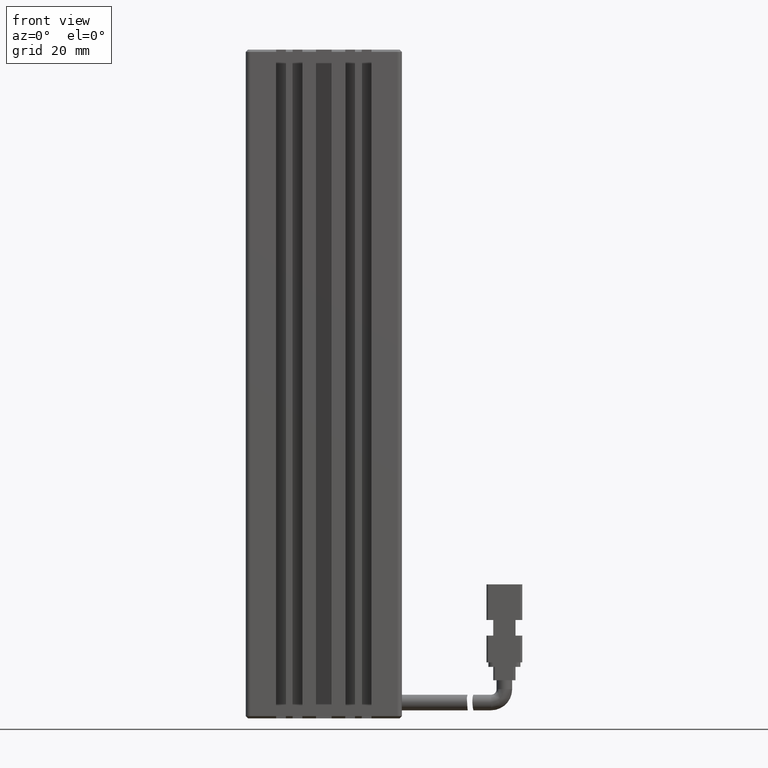
[diagram: clean part render]
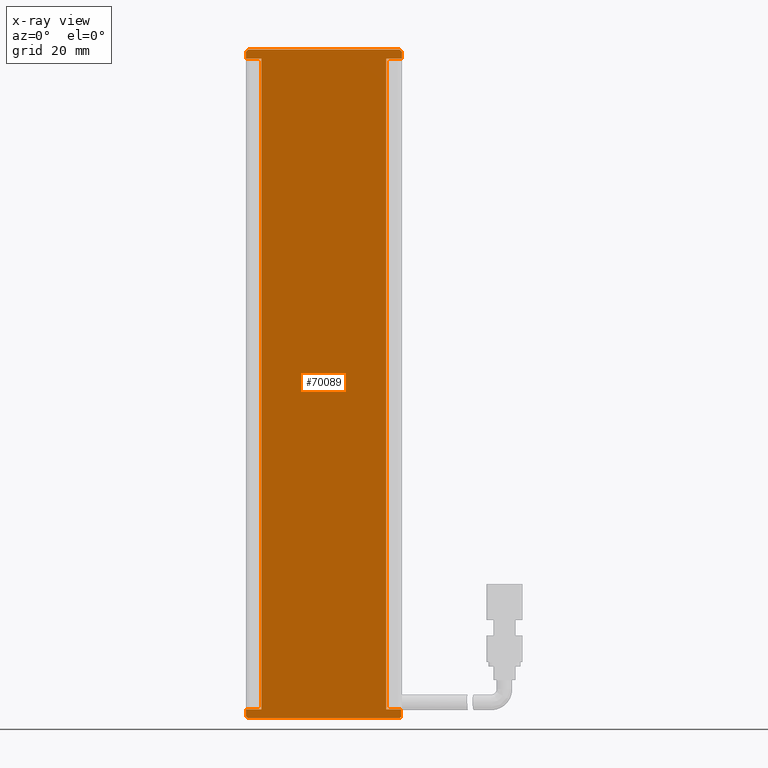
[diagram: x-ray — body ghosted, one internal face saturated and labeled with its STEP entity id]
A machine part, front view, then the same camera in x-ray: the body is ghosted and one INTERNAL B-rep face — a face not visible from any outside direction — is saturated and labeled: STEP entity #70089.
In plain terms, the highlighted planar face has unit normal (0, -1, 0).
Its self-contained STEP definition (entity closure, byte-faithful):
#636 = VECTOR ( 'NONE', #70390, 1000.000000000000000 ) ;
#668 = VERTEX_POINT ( 'NONE', #14587 ) ;
#1363 = LINE ( 'NONE', #42373, #33017 ) ;
#1548 = AXIS2_PLACEMENT_3D ( 'NONE', #62376, #45789, #12867 ) ;
#2262 = CARTESIAN_POINT ( 'NONE',  ( 23.42537974683542100, 19.49073232304836600, -188.0000000000000000 ) ) ;
#3545 = LINE ( 'NONE', #45978, #57423 ) ;
#3911 = CARTESIAN_POINT ( 'NONE',  ( 40.92537974683542500, 19.49073232304837000, -42.00000000000000700 ) ) ;
#3934 = CARTESIAN_POINT ( 'NONE',  ( 57.92537974683544600, 19.49073232304837700, -190.0000000000000000 ) ) ;
#4233 = DIRECTION ( 'NONE',  ( 0.7071067811865376900, -0.0000000000000000000, 0.7071067811865574500 ) ) ;
#5589 = LINE ( 'NONE', #30839, #26155 ) ;
#5670 = EDGE_CURVE ( 'NONE', #69003, #19405, #1363, .T. ) ;
#6541 = CARTESIAN_POINT ( 'NONE',  ( 23.42537974683541100, 19.49073232304836600, -189.5000000000000000 ) ) ;
#6785 = EDGE_CURVE ( 'NONE', #9625, #35556, #48807, .T. ) ;
#7121 = CARTESIAN_POINT ( 'NONE',  ( 23.92537974683541100, 19.49073232304836600, -190.0000000000000000 ) ) ;
#7551 = LINE ( 'NONE', #59390, #19555 ) ;
#9625 = VERTEX_POINT ( 'NONE', #61775 ) ;
#10149 = CARTESIAN_POINT ( 'NONE',  ( 26.92537974683542100, 19.49073232304836600, -188.0000000000000000 ) ) ;
#10217 = LINE ( 'NONE', #49197, #42699 ) ;
#10620 = CARTESIAN_POINT ( 'NONE',  ( 54.92537974683542500, 19.49073232304837000, -188.0000000000000000 ) ) ;
#11224 = CARTESIAN_POINT ( 'NONE',  ( 23.92537974683539700, 19.49073232304836600, -40.00000000000000700 ) ) ;
#11360 = LINE ( 'NONE', #55773, #29328 ) ;
#12867 = DIRECTION ( 'NONE',  ( 1.000000000000000000, 1.239088197126290600E-016, 0.0000000000000000000 ) ) ;
#13559 = EDGE_CURVE ( 'NONE', #20978, #70380, #18668, .T. ) ;
#13672 = CARTESIAN_POINT ( 'NONE',  ( 40.92537974683542500, 19.49073232304837000, -188.0000000000000000 ) ) ;
#14587 = CARTESIAN_POINT ( 'NONE',  ( 54.92537974683542500, 19.49073232304837000, -42.00000000000000700 ) ) ;
#15161 = CARTESIAN_POINT ( 'NONE',  ( 58.42537974683542500, 19.49073232304837700, -189.5000000000000300 ) ) ;
#15497 = CARTESIAN_POINT ( 'NONE',  ( 58.42537974683542500, 19.49073232304837000, -40.00000000000000700 ) ) ;
#17442 = EDGE_CURVE ( 'NONE', #54816, #61255, #7551, .T. ) ;
#18220 = EDGE_CURVE ( 'NONE', #35556, #668, #63845, .T. ) ;
#18379 = EDGE_CURVE ( 'NONE', #69003, #41795, #5589, .T. ) ;
#18668 = LINE ( 'NONE', #15161, #36677 ) ;
#19356 = ORIENTED_EDGE ( 'NONE', *, *, #38972, .F. ) ;
#19405 = VERTEX_POINT ( 'NONE', #27854 ) ;
#19555 = VECTOR ( 'NONE', #31461, 1000.000000000000000 ) ;
#20096 = CARTESIAN_POINT ( 'NONE',  ( 26.92537974683542100, 19.49073232304836600, -42.00000000000000700 ) ) ;
#20978 = VERTEX_POINT ( 'NONE', #62212 ) ;
#22678 = CARTESIAN_POINT ( 'NONE',  ( 54.92537974683542500, 19.49073232304837000, -40.00000000000000700 ) ) ;
#23193 = VECTOR ( 'NONE', #51830, 1000.000000000000000 ) ;
#23412 = LINE ( 'NONE', #3911, #56760 ) ;
#23973 = EDGE_CURVE ( 'NONE', #25539, #41795, #24524, .T. ) ;
#24372 = VECTOR ( 'NONE', #38802, 1000.000000000000000 ) ;
#24524 = LINE ( 'NONE', #34796, #56191 ) ;
#24680 = ORIENTED_EDGE ( 'NONE', *, *, #5670, .F. ) ;
#25509 = EDGE_CURVE ( 'NONE', #28510, #25539, #11360, .T. ) ;
#25539 = VERTEX_POINT ( 'NONE', #51963 ) ;
#26155 = VECTOR ( 'NONE', #4233, 999.9999999999998900 ) ;
#27854 = CARTESIAN_POINT ( 'NONE',  ( 23.42537974683542100, 19.49073232304836600, -42.00000000000000700 ) ) ;
#28510 = VERTEX_POINT ( 'NONE', #40415 ) ;
#28606 = ORIENTED_EDGE ( 'NONE', *, *, #23973, .F. ) ;
#28677 = DIRECTION ( 'NONE',  ( 5.595882180570460600E-016, 5.595882180570315600E-016, -1.000000000000000000 ) ) ;
#28759 = ORIENTED_EDGE ( 'NONE', *, *, #65673, .F. ) ;
#28897 = VECTOR ( 'NONE', #55609, 1000.000000000000000 ) ;
#29328 = VECTOR ( 'NONE', #56046, 1000.000000000000000 ) ;
#29597 = ORIENTED_EDGE ( 'NONE', *, *, #6785, .F. ) ;
#30839 = CARTESIAN_POINT ( 'NONE',  ( 23.42537974683542100, 19.49073232304836600, -40.49999999999999300 ) ) ;
#31461 = DIRECTION ( 'NONE',  ( 0.7071067811865378000, -0.0000000000000000000, -0.7071067811865573400 ) ) ;
#31480 = DIRECTION ( 'NONE',  ( 1.000000000000000000, 1.239088197126290600E-016, 0.0000000000000000000 ) ) ;
#32180 = ORIENTED_EDGE ( 'NONE', *, *, #18379, .T. ) ;
#33017 = VECTOR ( 'NONE', #64872, 1000.000000000000000 ) ;
#33084 = DIRECTION ( 'NONE',  ( 1.000000000000000000, 1.239088197126290600E-016, 0.0000000000000000000 ) ) ;
#33998 = ORIENTED_EDGE ( 'NONE', *, *, #70575, .F. ) ;
#34545 = EDGE_CURVE ( 'NONE', #9625, #20978, #10217, .T. ) ;
#34592 = PLANE ( 'NONE',  #1548 ) ;
#34796 = CARTESIAN_POINT ( 'NONE',  ( 40.92537974683542500, 19.49073232304837000, -40.00000000000000700 ) ) ;
#35159 = VERTEX_POINT ( 'NONE', #2262 ) ;
#35556 = VERTEX_POINT ( 'NONE', #10620 ) ;
#36677 = VECTOR ( 'NONE', #58679, 1000.000000000000100 ) ;
#37010 = DIRECTION ( 'NONE',  ( -0.0000000000000000000, -0.0000000000000000000, -1.000000000000000000 ) ) ;
#37657 = CARTESIAN_POINT ( 'NONE',  ( 23.42537974683542100, 19.49073232304836600, -40.49999999999999300 ) ) ;
#38130 = ORIENTED_EDGE ( 'NONE', *, *, #18220, .F. ) ;
#38458 = DIRECTION ( 'NONE',  ( -0.0000000000000000000, 0.0000000000000000000, 1.000000000000000000 ) ) ;
#38768 = ORIENTED_EDGE ( 'NONE', *, *, #47216, .F. ) ;
#38802 = DIRECTION ( 'NONE',  ( 0.0000000000000000000, -0.0000000000000000000, -1.000000000000000000 ) ) ;
#38972 = EDGE_CURVE ( 'NONE', #64289, #35159, #70802, .T. ) ;
#39175 = CARTESIAN_POINT ( 'NONE',  ( 40.92537974683542500, 19.49073232304837000, -188.0000000000000000 ) ) ;
#40415 = CARTESIAN_POINT ( 'NONE',  ( 58.42537974683542500, 19.49073232304837000, -40.50000000000002100 ) ) ;
#41795 = VERTEX_POINT ( 'NONE', #11224 ) ;
#42373 = CARTESIAN_POINT ( 'NONE',  ( 23.42537974683542100, 19.49073232304836600, -40.00000000000000700 ) ) ;
#42699 = VECTOR ( 'NONE', #28677, 1000.000000000000000 ) ;
#45789 = DIRECTION ( 'NONE',  ( 1.239088197126290600E-016, -1.000000000000000000, 0.0000000000000000000 ) ) ;
#45978 = CARTESIAN_POINT ( 'NONE',  ( 40.92537974683542500, 19.49073232304837000, -190.0000000000000000 ) ) ;
#46822 = ORIENTED_EDGE ( 'NONE', *, *, #34545, .T. ) ;
#46899 = EDGE_CURVE ( 'NONE', #28510, #61094, #66881, .T. ) ;
#47216 = EDGE_CURVE ( 'NONE', #61255, #70380, #3545, .T. ) ;
#48807 = LINE ( 'NONE', #13672, #23193 ) ;
#49197 = CARTESIAN_POINT ( 'NONE',  ( 58.27537974683539800, 19.49073232304837000, -188.0000000000000000 ) ) ;
#49904 = EDGE_LOOP ( 'NONE', ( #46822, #61042, #38768, #68845, #50725, #19356, #33998, #61359, #24680, #32180, #28606, #52555, #53503, #28759, #38130, #29597 ) ) ;
#50497 = DIRECTION ( 'NONE',  ( -1.000000000000000000, -1.239088197126290600E-016, -0.0000000000000000000 ) ) ;
#50725 = ORIENTED_EDGE ( 'NONE', *, *, #54638, .F. ) ;
#51011 = EDGE_CURVE ( 'NONE', #19405, #60928, #57559, .T. ) ;
#51830 = DIRECTION ( 'NONE',  ( -1.000000000000000000, -1.239088197126290600E-016, -0.0000000000000000000 ) ) ;
#51963 = CARTESIAN_POINT ( 'NONE',  ( 57.92537974683543900, 19.49073232304837000, -40.00000000000000700 ) ) ;
#52555 = ORIENTED_EDGE ( 'NONE', *, *, #25509, .F. ) ;
#53503 = ORIENTED_EDGE ( 'NONE', *, *, #46899, .T. ) ;
#54638 = EDGE_CURVE ( 'NONE', #35159, #54816, #62314, .T. ) ;
#54816 = VERTEX_POINT ( 'NONE', #6541 ) ;
#55122 = LINE ( 'NONE', #61556, #24372 ) ;
#55609 = DIRECTION ( 'NONE',  ( -1.000000000000000000, -1.239088197126290600E-016, -0.0000000000000000000 ) ) ;
#55773 = CARTESIAN_POINT ( 'NONE',  ( 57.92537974683543900, 19.49073232304837000, -40.00000000000000700 ) ) ;
#56046 = DIRECTION ( 'NONE',  ( -0.7071067811865378000, -0.0000000000000000000, 0.7071067811865573400 ) ) ;
#56191 = VECTOR ( 'NONE', #50497, 1000.000000000000000 ) ;
#56760 = VECTOR ( 'NONE', #31480, 1000.000000000000000 ) ;
#57423 = VECTOR ( 'NONE', #62519, 1000.000000000000000 ) ;
#57559 = LINE ( 'NONE', #65814, #69553 ) ;
#58679 = DIRECTION ( 'NONE',  ( -0.7071067811865474600, -0.0000000000000000000, -0.7071067811865474600 ) ) ;
#58702 = VECTOR ( 'NONE', #38458, 1000.000000000000000 ) ;
#59390 = CARTESIAN_POINT ( 'NONE',  ( 23.92537974683541100, 19.49073232304836600, -190.0000000000000000 ) ) ;
#60410 = CARTESIAN_POINT ( 'NONE',  ( 23.42537974683542100, 19.49073232304836600, -40.00000000000000700 ) ) ;
#60928 = VERTEX_POINT ( 'NONE', #20096 ) ;
#61042 = ORIENTED_EDGE ( 'NONE', *, *, #13559, .T. ) ;
#61094 = VERTEX_POINT ( 'NONE', #69554 ) ;
#61255 = VERTEX_POINT ( 'NONE', #7121 ) ;
#61359 = ORIENTED_EDGE ( 'NONE', *, *, #51011, .F. ) ;
#61556 = CARTESIAN_POINT ( 'NONE',  ( 26.92537974683542100, 19.49073232304836600, -40.00000000000000700 ) ) ;
#61775 = CARTESIAN_POINT ( 'NONE',  ( 58.27537974683539800, 19.49073232304837000, -188.0000000000000000 ) ) ;
#62212 = CARTESIAN_POINT ( 'NONE',  ( 58.27537974683539800, 19.49073232304837300, -189.6500000000000300 ) ) ;
#62314 = LINE ( 'NONE', #60410, #636 ) ;
#62376 = CARTESIAN_POINT ( 'NONE',  ( 40.92537974683542500, 19.49073232304837000, -40.00000000000000700 ) ) ;
#62519 = DIRECTION ( 'NONE',  ( 1.000000000000000000, 1.239088197126290600E-016, 0.0000000000000000000 ) ) ;
#63537 = VECTOR ( 'NONE', #37010, 1000.000000000000000 ) ;
#63845 = LINE ( 'NONE', #22678, #58702 ) ;
#64289 = VERTEX_POINT ( 'NONE', #10149 ) ;
#64872 = DIRECTION ( 'NONE',  ( -0.0000000000000000000, -0.0000000000000000000, -1.000000000000000000 ) ) ;
#65551 = FACE_OUTER_BOUND ( 'NONE', #49904, .T. ) ;
#65673 = EDGE_CURVE ( 'NONE', #668, #61094, #23412, .T. ) ;
#65814 = CARTESIAN_POINT ( 'NONE',  ( 40.92537974683542500, 19.49073232304837000, -42.00000000000000700 ) ) ;
#66881 = LINE ( 'NONE', #15497, #63537 ) ;
#68845 = ORIENTED_EDGE ( 'NONE', *, *, #17442, .F. ) ;
#69003 = VERTEX_POINT ( 'NONE', #37657 ) ;
#69553 = VECTOR ( 'NONE', #33084, 1000.000000000000000 ) ;
#69554 = CARTESIAN_POINT ( 'NONE',  ( 58.42537974683542500, 19.49073232304837000, -42.00000000000000700 ) ) ;
#70089 = ADVANCED_FACE ( 'NONE', ( #65551 ), #34592, .F. ) ;
#70380 = VERTEX_POINT ( 'NONE', #3934 ) ;
#70390 = DIRECTION ( 'NONE',  ( -0.0000000000000000000, -0.0000000000000000000, -1.000000000000000000 ) ) ;
#70575 = EDGE_CURVE ( 'NONE', #60928, #64289, #55122, .T. ) ;
#70802 = LINE ( 'NONE', #39175, #28897 ) ;